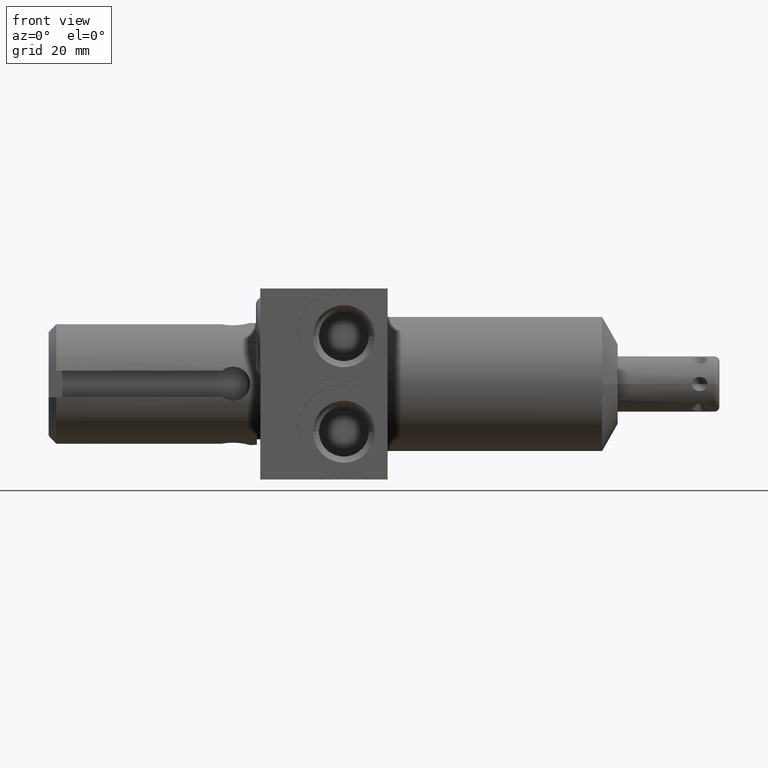
[diagram: clean part render]
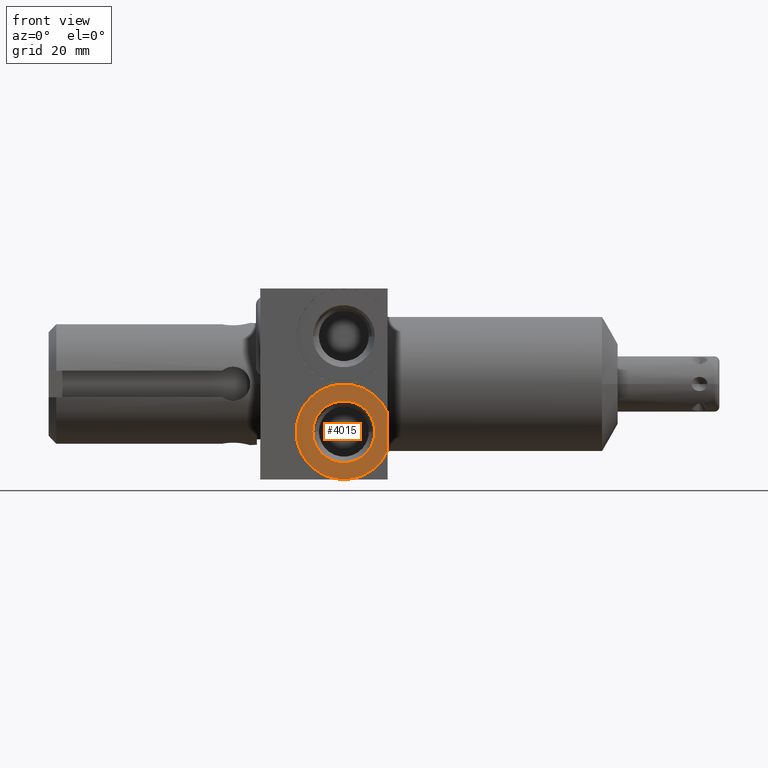
[diagram: same view with one face highlighted and labeled with its STEP entity id]
A machine part, front view. The second image highlights one B-rep face of the part: STEP entity #4015.
In plain terms, the highlighted planar face has unit normal (0, 1, 0).
Its self-contained STEP definition (entity closure, byte-faithful):
#730=DIRECTION('',(0.E0,0.E0,1.E0));
#731=VECTOR('',#730,2.985900199270E-1);
#732=CARTESIAN_POINT('',(0.E0,-1.189E0,-5.242950099635E-1));
#733=LINE('',#732,#731);
#1312=CARTESIAN_POINT('',(-3.44E-1,-1.189E0,-3.75E-1));
#1313=DIRECTION('',(0.E0,-1.E0,0.E0));
#1314=DIRECTION('',(9.173333333333E-1,0.E0,3.981200265693E-1));
#1315=AXIS2_PLACEMENT_3D('',#1312,#1313,#1314);
#1328=CARTESIAN_POINT('',(-3.44E-1,-1.189E0,-3.75E-1));
#1329=DIRECTION('',(0.E0,-1.E0,0.E0));
#1330=DIRECTION('',(-1.E0,0.E0,0.E0));
#1331=AXIS2_PLACEMENT_3D('',#1328,#1329,#1330);
#1336=CARTESIAN_POINT('',(-3.44E-1,-1.189E0,-3.75E-1));
#1337=DIRECTION('',(0.E0,-1.E0,0.E0));
#1338=DIRECTION('',(1.E0,0.E0,0.E0));
#1339=AXIS2_PLACEMENT_3D('',#1336,#1337,#1338);
#2828=CARTESIAN_POINT('',(-5.875E-1,-1.189E0,-3.75E-1));
#2829=CARTESIAN_POINT('',(-1.005E-1,-1.189E0,-3.75E-1));
#2830=VERTEX_POINT('',#2828);
#2831=VERTEX_POINT('',#2829);
#2842=CARTESIAN_POINT('',(0.E0,-1.189E0,-5.242950099635E-1));
#2843=CARTESIAN_POINT('',(0.E0,-1.189E0,-2.257049900365E-1));
#2844=VERTEX_POINT('',#2842);
#2845=VERTEX_POINT('',#2843);
#4000=CARTESIAN_POINT('',(-3.44E-1,-1.189E0,-3.75E-1));
#4001=DIRECTION('',(0.E0,1.E0,0.E0));
#4002=DIRECTION('',(-1.E0,0.E0,0.E0));
#4003=AXIS2_PLACEMENT_3D('',#4000,#4001,#4002);
#4004=PLANE('',#4003);
#4005=ORIENTED_EDGE('',*,*,#3518,.F.);
#4006=ORIENTED_EDGE('',*,*,#3990,.F.);
#4007=EDGE_LOOP('',(#4005,#4006));
#4008=FACE_OUTER_BOUND('',#4007,.F.);
#4010=ORIENTED_EDGE('',*,*,#4009,.T.);
#4012=ORIENTED_EDGE('',*,*,#4011,.T.);
#4013=EDGE_LOOP('',(#4010,#4012));
#4014=FACE_BOUND('',#4013,.F.);
#1316=CIRCLE('',#1315,3.75E-1);
#1332=CIRCLE('',#1331,2.435E-1);
#1340=CIRCLE('',#1339,2.435E-1);
#3518=EDGE_CURVE('',#2844,#2845,#733,.T.);
#3990=EDGE_CURVE('',#2845,#2844,#1316,.T.);
#4009=EDGE_CURVE('',#2830,#2831,#1332,.T.);
#4011=EDGE_CURVE('',#2831,#2830,#1340,.T.);
#4015=ADVANCED_FACE('',(#4008,#4014),#4004,.F.);